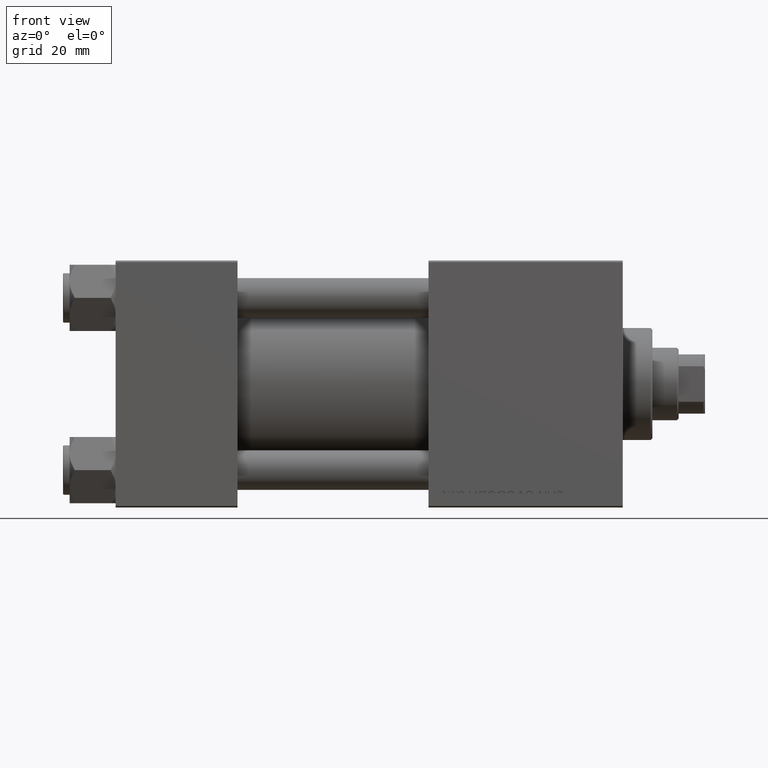
[diagram: clean part render]
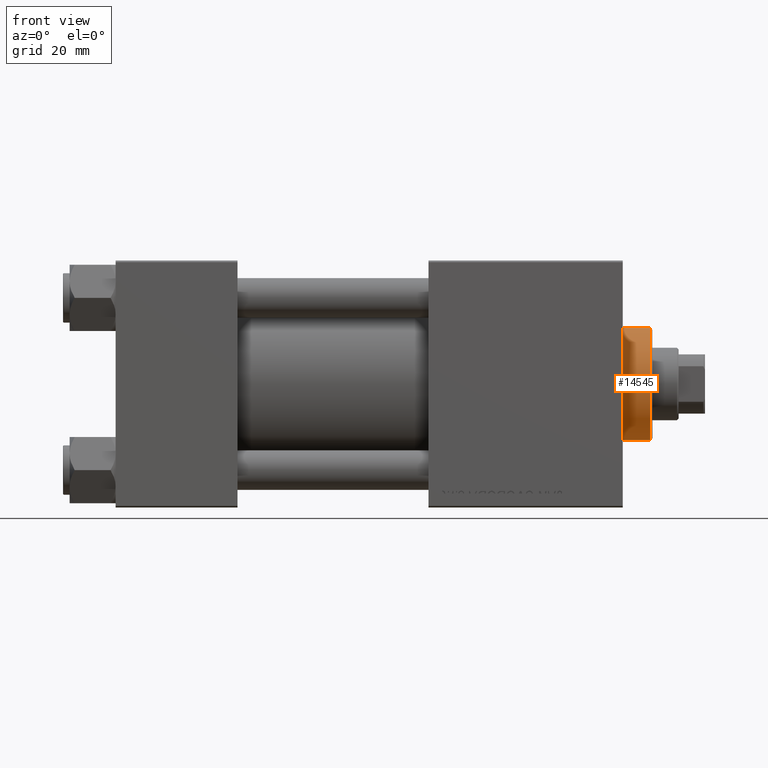
[diagram: same view with one face highlighted and labeled with its STEP entity id]
A machine part, front view. The second image highlights one B-rep face of the part: STEP entity #14545.
In plain terms, the highlighted cylindrical surface (partial cylindrical patch) has radius 17 mm, axis along (-1, -0, 0).
Its self-contained STEP definition (entity closure, byte-faithful):
#1837 = VECTOR ( 'NONE', #18640, 1000.000000000000000 ) ;
#4186 = CARTESIAN_POINT ( 'NONE',  ( 17.00000000000000000, 2.081899558550500280E-15, 37.69999999999999574 ) ) ;
#6378 = CARTESIAN_POINT ( 'NONE',  ( -17.00000000000000000, 0.000000000000000000, 37.19999999999999574 ) ) ;
#9197 = VERTEX_POINT ( 'NONE', #12788 ) ;
#10755 = ORIENTED_EDGE ( 'NONE', *, *, #38673, .T. ) ;
#11108 = DIRECTION ( 'NONE',  ( 0.000000000000000000, 0.000000000000000000, 1.000000000000000000 ) ) ;
#12601 = ORIENTED_EDGE ( 'NONE', *, *, #41319, .F. ) ;
#12788 = CARTESIAN_POINT ( 'NONE',  ( -17.00000000000000000, 0.000000000000000000, 28.69999999999999929 ) ) ;
#14545 = ADVANCED_FACE ( 'NONE', ( #17262 ), #16751, .T. ) ;
#14924 = CARTESIAN_POINT ( 'NONE',  ( 0.000000000000000000, 0.000000000000000000, 28.69999999999999929 ) ) ;
#16261 = CARTESIAN_POINT ( 'NONE',  ( 17.00000000000000000, 2.081899558550500280E-15, 28.69999999999999929 ) ) ;
#16751 = CYLINDRICAL_SURFACE ( 'NONE', #43849, 17.00000000000000000 ) ;
#17262 = FACE_OUTER_BOUND ( 'NONE', #28850, .T. ) ;
#17630 = VERTEX_POINT ( 'NONE', #16261 ) ;
#18010 = AXIS2_PLACEMENT_3D ( 'NONE', #49193, #45382, #26321 ) ;
#18640 = DIRECTION ( 'NONE',  ( -0.000000000000000000, -0.000000000000000000, -1.000000000000000000 ) ) ;
#19103 = AXIS2_PLACEMENT_3D ( 'NONE', #14924, #11108, #26587 ) ;
#20326 = EDGE_CURVE ( 'NONE', #9197, #17630, #46660, .T. ) ;
#23449 = LINE ( 'NONE', #4186, #1837 ) ;
#24621 = DIRECTION ( 'NONE',  ( -1.000000000000000000, 0.000000000000000000, 0.000000000000000000 ) ) ;
#24868 = DIRECTION ( 'NONE',  ( -0.000000000000000000, -0.000000000000000000, -1.000000000000000000 ) ) ;
#25232 = VERTEX_POINT ( 'NONE', #33580 ) ;
#26142 = VERTEX_POINT ( 'NONE', #6378 ) ;
#26321 = DIRECTION ( 'NONE',  ( 1.000000000000000000, 0.000000000000000000, 0.000000000000000000 ) ) ;
#26587 = DIRECTION ( 'NONE',  ( 1.000000000000000000, 0.000000000000000000, 0.000000000000000000 ) ) ;
#28850 = EDGE_LOOP ( 'NONE', ( #12601, #35665, #10755, #43950 ) ) ;
#31544 = CARTESIAN_POINT ( 'NONE',  ( -17.00000000000000000, 0.000000000000000000, 37.69999999999999574 ) ) ;
#32743 = CARTESIAN_POINT ( 'NONE',  ( 0.000000000000000000, 0.000000000000000000, 37.69999999999999574 ) ) ;
#33580 = CARTESIAN_POINT ( 'NONE',  ( 17.00000000000000000, 2.081899558550500280E-15, 37.19999999999999574 ) ) ;
#35665 = ORIENTED_EDGE ( 'NONE', *, *, #45027, .T. ) ;
#35779 = VECTOR ( 'NONE', #47039, 1000.000000000000000 ) ;
#38673 = EDGE_CURVE ( 'NONE', #26142, #9197, #50077, .T. ) ;
#41319 = EDGE_CURVE ( 'NONE', #25232, #17630, #23449, .T. ) ;
#43849 = AXIS2_PLACEMENT_3D ( 'NONE', #32743, #24868, #24621 ) ;
#43950 = ORIENTED_EDGE ( 'NONE', *, *, #20326, .T. ) ;
#45027 = EDGE_CURVE ( 'NONE', #25232, #26142, #48834, .T. ) ;
#45382 = DIRECTION ( 'NONE',  ( 0.000000000000000000, 0.000000000000000000, -1.000000000000000000 ) ) ;
#46660 = CIRCLE ( 'NONE', #19103, 17.00000000000000000 ) ;
#47039 = DIRECTION ( 'NONE',  ( -0.000000000000000000, -0.000000000000000000, -1.000000000000000000 ) ) ;
#48834 = CIRCLE ( 'NONE', #18010, 17.00000000000000000 ) ;
#49193 = CARTESIAN_POINT ( 'NONE',  ( 0.000000000000000000, 0.000000000000000000, 37.19999999999999574 ) ) ;
#50077 = LINE ( 'NONE', #31544, #35779 ) ;